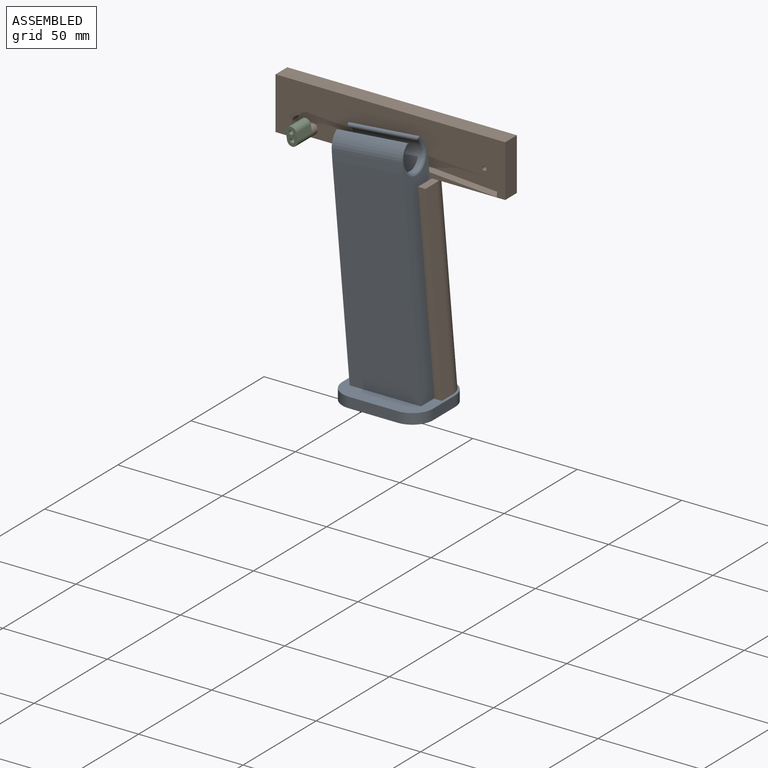
[diagram: assembled view]
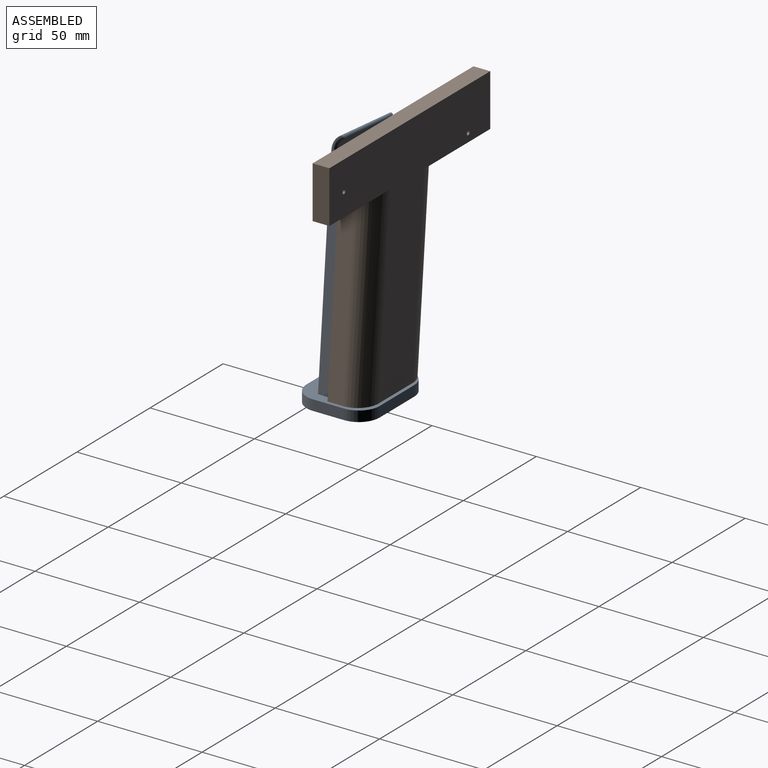
[diagram: assembled view, second angle]
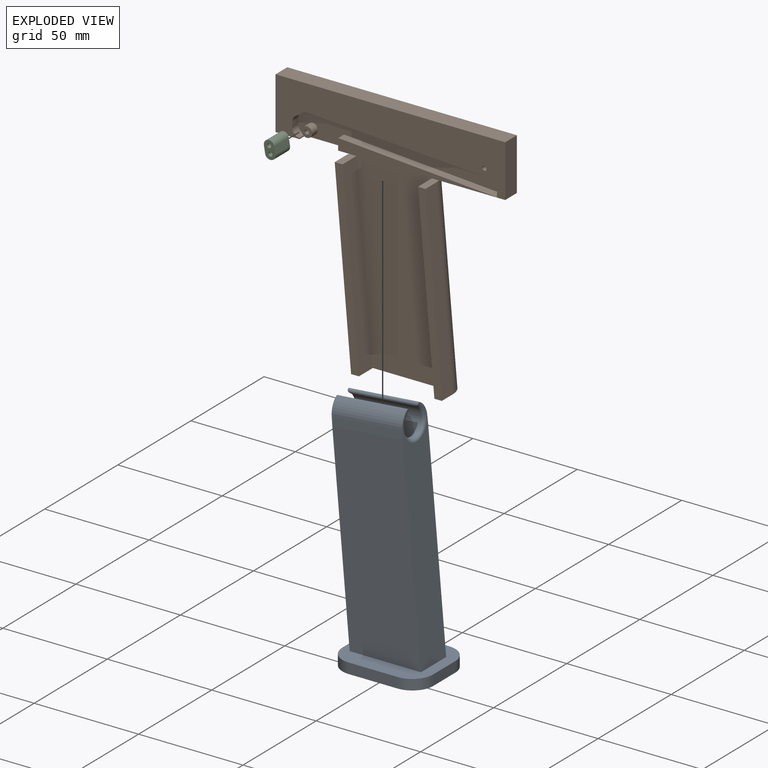
[diagram: exploded view]
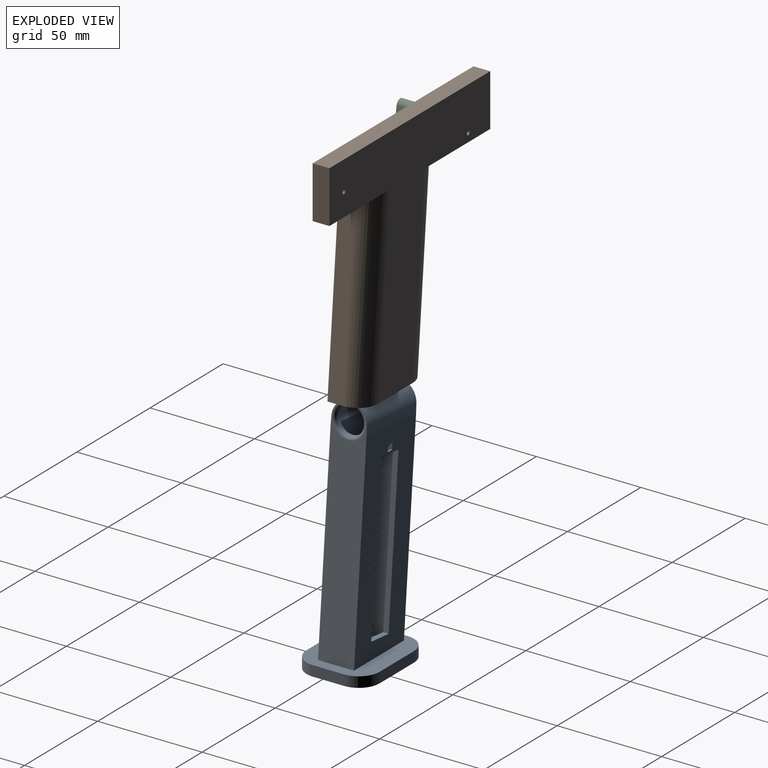
[diagram: exploded view, second angle]
ASSEMBLY  parts=3 mates=2
PART A: 41 faces, bbox 35x48.6x115 mm
  f0: plane 106.55x17.25mm, normal (0,-1,-0.09), area 1626.2mm2, adj f2,f3,f9,f18,f31,f32,f33,f35
  f1: plane 109.51x17.25mm, normal (0,1,0.09), area 1677.5mm2, adj f2,f3,f9,f18,f31,f32,f33,f35
  f2: cylinder r=8.5mm len=34.5mm, axis (0,-1,-0.09), area 291.4mm2, adj f0,f1,f33,f35
  f3: plane 98.21x42.46mm, normal (-1,0,0), area 2361.9mm2, adj f0,f1,f9,f20,f21,f22,f23,f24
  f4: plane 99.42x36.59mm, normal (1,0,0), area 1822.7mm2, adj f15,f17,f19,f20,f21,f22,f23,f24
  f5: plane 23.47x5mm, normal (1,0,0), area 117.3mm2, adj f9,f10,f11,f14
  f6: plane 15x5mm, normal (0,1,0), area 75mm2, adj f9,f10,f11,f12
  f7: plane 23.47x5mm, normal (-1,0,0), area 117.3mm2, adj f9,f10,f12,f13
  f8: plane 15x5mm, normal (0,-1,0), area 75mm2, adj f9,f10,f13,f14
  f9: plane 43.47x35mm, normal (0,0,1), area 846.8mm2, adj f0,f1,f3,f5,f6,f7,f8,f11
  f10: plane 43.47x35mm, normal (0,0,-1), area 1435.5mm2, adj f5,f6,f7,f8,f11,f12,f13,f14
  f11: cylinder r=10mm len=10mm, axis (0,0,1), area 78.5mm2, adj f5,f6,f9,f10
  f12: cylinder r=10mm len=10mm, axis (0,0,-1), area 78.5mm2, adj f6,f7,f9,f10
  f13: cylinder r=10mm len=10mm, axis (0,0,1), area 78.5mm2, adj f7,f8,f9,f10
  f14: cylinder r=10mm len=10mm, axis (0,0,-1), area 78.5mm2, adj f5,f8,f9,f10
  f15: plane 97.27x12.21mm, normal (0,1,0.09), area 1133.8mm2, adj f4,f16,f19,f34,f39,f40
  f16: plane 99.42x36.59mm, normal (-1,0,0), area 2760.2mm2, adj f15,f17,f19,f39
  f17: plane 99.71x12.21mm, normal (0,-1,-0.09), area 1163.2mm2, adj f4,f16,f19,f34,f39,f40
  f18: plane 98.21x42.46mm, normal (1,0,0), area 3301.3mm2, adj f0,f1,f9,f33
  f19: plane 28.11x12mm, normal (0,0,1), area 337.3mm2, adj f4,f15,f16,f17
  f20: plane 11.95x2.63mm, normal (0,0.09,-1), area 26.2mm2, adj f3,f4,f21,f23,f24,f26,f30
  f21: plane 77.24x6.76mm, normal (0,1,0.09), area 203.5mm2, adj f3,f4,f20,f22
  f22: plane 11.95x2.63mm, normal (0,-0.09,1), area 31.5mm2, adj f3,f4,f21,f23
  f23: plane 77.24x6.76mm, normal (0,-1,-0.09), area 203.5mm2, adj f3,f4,f20,f22
  f24: plane 3.88x2.63mm, normal (0,-1,0), area 7.2mm2, adj f3,f4,f20,f25,f27,f28,f29,f30
  f25: plane 3x1.31mm, normal (0,0,-1), area 3.9mm2, adj f3,f24,f26,f28
  f26: plane 4.14x2.63mm, normal (0,1,0), area 7.7mm2, adj f3,f4,f20,f25,f27,f28,f29,f30
  f27: plane 3x0.88mm, normal (0,0,1), area 2.6mm2, adj f3,f24,f26,f30
  f28: plane 3x1.65mm, normal (-1,0,0), area 4.9mm2, adj f24,f25,f26,f29
  f29: plane 3x1.31mm, normal (0,0,-1), area 3.9mm2, adj f4,f24,f26,f28
  f30: plane 3x1.14mm, normal (1,0,0), area 3mm2, adj f20,f24,f26,f27
  f31: plane 34.22x6.95mm, normal (-1,0,0.03), area 136.1mm2, adj f0,f1,f3,f32
  f32: cylinder r=8.5mm len=34.5mm, axis (0,-1,-0.09), area 291.4mm2, adj f0,f1,f31,f36
  f33: plane 34.22x6.95mm, normal (1,0,0.03), area 136.1mm2, adj f0,f1,f2,f18
  f34: cylinder r=6.5mm len=31.93mm, axis (0,-1,-0.09), area 595.1mm2, adj f15,f17,f35,f36,f37,f38,f39,f40
  f35: cylinder r=1mm len=34.03mm, axis (0,-1,-0.09), area 104.8mm2, adj f0,f1,f2,f34,f37,f38
  f36: cylinder r=1mm len=34.03mm, axis (0,-1,-0.09), area 104.8mm2, adj f0,f1,f32,f34,f37,f38
  f37: torus R=8mm, axis (0,-1,-0.09), area 88.8mm2, adj f0,f34,f35,f36
  f38: torus R=8mm, axis (0,-1,-0.09), area 88.8mm2, adj f1,f34,f35,f36
  f39: cylinder r=513.01mm len=27.92mm, axis (0,-1,-0.09), area 8.6mm2, adj f15,f16,f17,f34
  f40: cylinder r=513.01mm len=27.92mm, axis (0,1,0.09), area 8.6mm2, adj f4,f15,f17,f34
PART B: 37 faces, bbox 110x17.5x115.5 mm
  f0: plane 9.51x3.76mm, normal (0,0,1), area 35.5mm2, adj f3,f6,f8,f10,f11
  f1: plane 89.66x11.43mm, normal (0,-1,0), area 321.1mm2, adj f2,f4,f5,f12
  f2: plane 9.51x3.59mm, normal (0,0,1), area 33.9mm2, adj f1,f5,f9,f10,f12
  f3: plane 89.66x7.84mm, normal (-1,0,-0.09), area 675mm2, adj f0,f4,f6,f8
  f4: plane 43.47x17.5mm, normal (0,0,-1), area 374.3mm2, adj f1,f3,f5,f6,f7,f8,f9,f10
  f5: plane 89.66x7.84mm, normal (1,0,0.09), area 675mm2, adj f1,f2,f4,f9
  f6: plane 89.66x11.59mm, normal (0,-1,0), area 336mm2, adj f0,f3,f4,f11
  f7: plane 114.66x110mm, normal (0,1,0), area 4840.8mm2, adj f4,f8,f9,f13,f14,f15,f16,f17
  f8: cylinder r=10mm len=91.4mm, axis (0.09,0,-1), area 1413.7mm2, adj f0,f3,f4,f7,f14
  f9: cylinder r=10mm len=91.4mm, axis (-0.09,0,1), area 1413.7mm2, adj f2,f4,f5,f7,f13
  f10: plane 114.66x110mm, normal (0,-1,0), area 5231mm2, adj f0,f2,f4,f11,f12,f13,f14,f15
  f11: plane 89.66x9.5mm, normal (1,0,0.09), area 855mm2, adj f0,f4,f6,f10
  f12: plane 89.66x9.5mm, normal (-1,0,-0.09), area 855mm2, adj f1,f2,f4,f10
  f13: plane 41.57x8mm, normal (0,0,-1), area 273.7mm2, adj f7,f9,f10,f15
  f14: plane 45.04x8mm, normal (0,0,-1), area 227.4mm2, adj f7,f8,f10,f17,f23,f24,f31
  f15: plane 25x8mm, normal (1,0,0), area 200mm2, adj f7,f10,f13,f16
  f16: plane 110x8mm, normal (0,0,1), area 880mm2, adj f7,f10,f15,f17
  f17: plane 25x8mm, normal (-1,0,0), area 200mm2, adj f7,f10,f14,f16
  f18: cylinder r=3.5mm len=4mm, axis (0,1,0), area 1.6mm2, adj f10,f19,f29,f31
  f19: plane 84.79x4.99mm, normal (-0.06,0,-1), area 339.8mm2, adj f10,f18,f20,f31
  f20: cylinder r=3.5mm len=4mm, axis (0,1,0), area 11.2mm2, adj f10,f19,f31,f35
  f21: cylinder r=3.5mm len=4mm, axis (0,1,0), area 16mm2, adj f10,f31,f35,f36
  f22: cylinder r=3.5mm len=4mm, axis (0,1,0), area 23mm2, adj f10,f23,f31,f36
  f23: plane 4x0.5mm, normal (1,0,0), area 2mm2, adj f10,f14,f22,f31
  f24: plane 5.44x4mm, normal (-1,0,0), area 21.8mm2, adj f10,f14,f25,f31
  f25: plane 70x4.95mm, normal (0.07,0,1), area 280.7mm2, adj f10,f24,f26,f31
  f26: plane 6.01x4mm, normal (0.06,0,1), area 24.1mm2, adj f10,f25,f27,f31
  f27: plane 4x0.35mm, normal (-1,0,0), area 1.4mm2, adj f10,f26,f28,f31
  f28: plane 6.63x4mm, normal (-1,0,0.06), area 26.6mm2, adj f10,f27,f29,f31
  f29: plane 5.99x4mm, normal (-0.06,0,-1), area 24mm2, adj f10,f18,f28,f31
  f30: cylinder r=2.5mm len=5mm, axis (0,1,0), area 62.8mm2, adj f31,f32
  f31: plane 98.4x12.5mm, normal (0,-1,0), area 736.2mm2, adj f14,f18,f19,f20,f21,f22,f23,f24
  f32: plane 5x5mm, normal (0,-1,0), area 16.5mm2, adj f30,f33
  f33: cylinder r=1mm len=8mm, axis (0,1,0), area 50.3mm2, adj f7,f32
  f34: cylinder r=1mm len=8mm, axis (0,1,0), area 50.3mm2, adj f7,f10
  f35: cylinder r=13.99mm len=4mm, axis (0,1,0), area 13.8mm2, adj f10,f20,f21,f31
  f36: cylinder r=13.99mm len=4mm, axis (0,1,0), area 8mm2, adj f10,f21,f22,f31
PART C: 8 faces, bbox 10x5x8.5 mm
  f0: plane 10x3.5mm, normal (0,-1,0), area 35mm2, adj f1,f4,f6,f7
  f1: cylinder r=2.5mm len=10mm, axis (-1,0,0), area 78.5mm2, adj f0,f2,f6,f7
  f2: plane 10x3.5mm, normal (0,1,0), area 35mm2, adj f1,f4,f6,f7
  f3: cylinder r=1mm len=10mm, axis (-1,0,0), area 62.8mm2, adj f6,f7
  f4: cylinder r=2.5mm len=10mm, axis (-1,0,0), area 78.5mm2, adj f0,f2,f6,f7
  f5: cylinder r=1mm len=10mm, axis (-1,0,0), area 62.8mm2, adj f6,f7
  f6: plane 8.5x5mm, normal (1,0,0), area 30.9mm2, adj f0,f1,f2,f3,f4,f5
  f7: plane 8.5x5mm, normal (-1,0,0), area 30.9mm2, adj f0,f1,f2,f3,f4,f5
PLACE A rot(axis=(0,0,-1),90deg) t=(50.39,6.04,-56.28)mm
PLACE B t=(20.3,22.66,39.03)mm fixed
PLACE C rot(axis=(0.08,-0.08,-0.99),90.4deg) t=(0.3,14.66,43.03)mm
MATE revolute C.f3 <-> B.f30  axis (0,1,0) through (0.3,14.66,43.03)mm
MATE slider A.f9 <-> B.f4  axis (0,0,1) through (49.96,14.66,-51.28)mm
